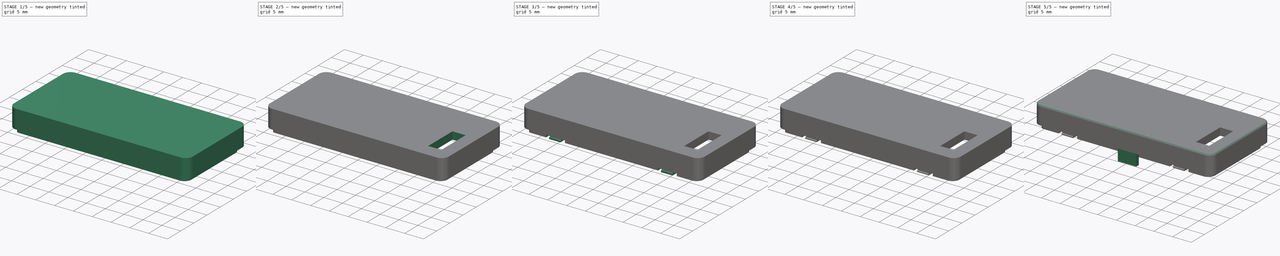
[diagram: build sequence overview — one tinted view per stage of 5, left to right]
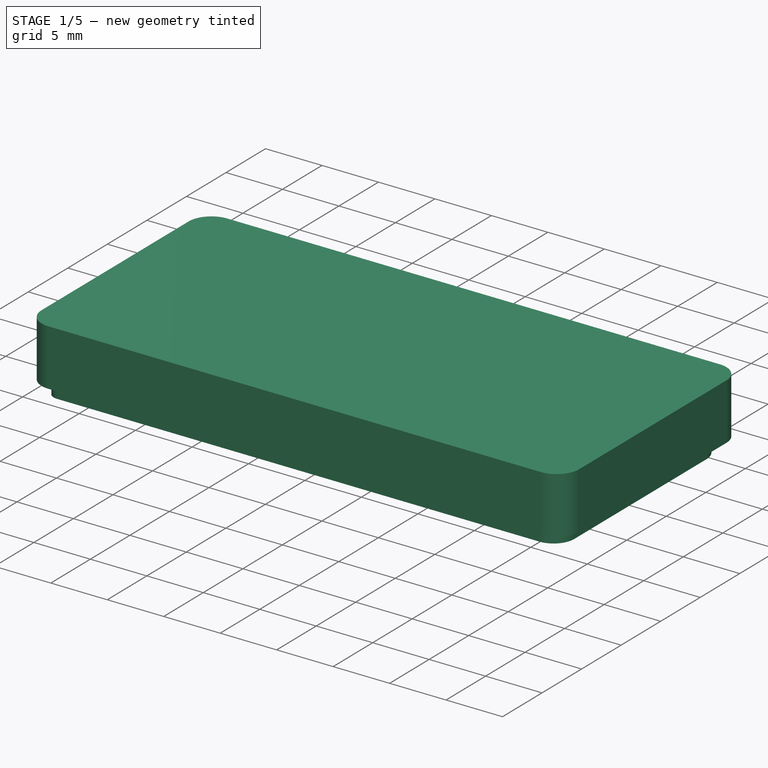
[diagram: stage 1 of 5 — iso view after this stage's code; geometry added in this stage tinted green]
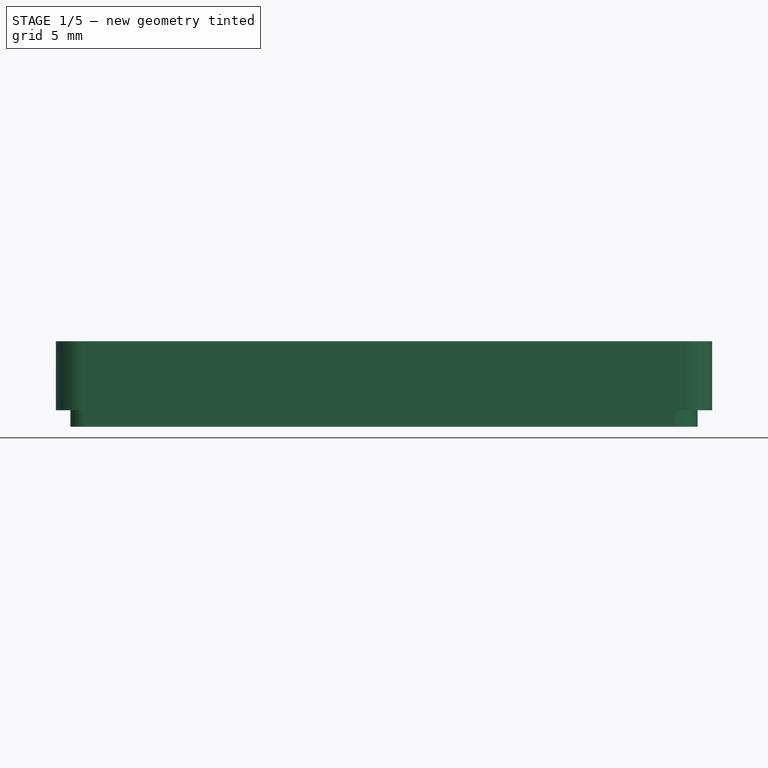
[diagram: stage 1 of 5 — front view after this stage's code; geometry added in this stage tinted green]
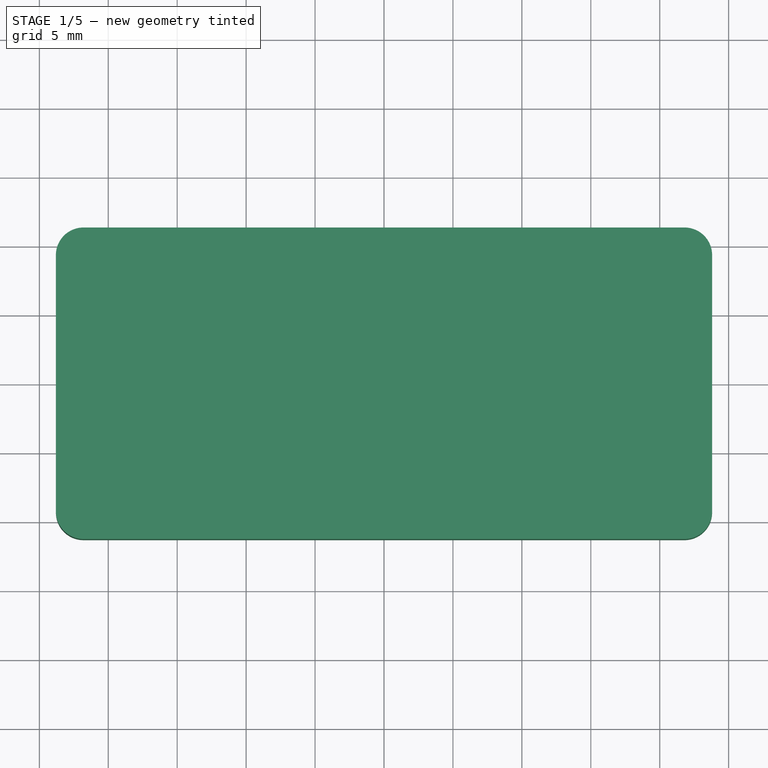
[diagram: stage 1 of 5 — top view after this stage's code; geometry added in this stage tinted green]
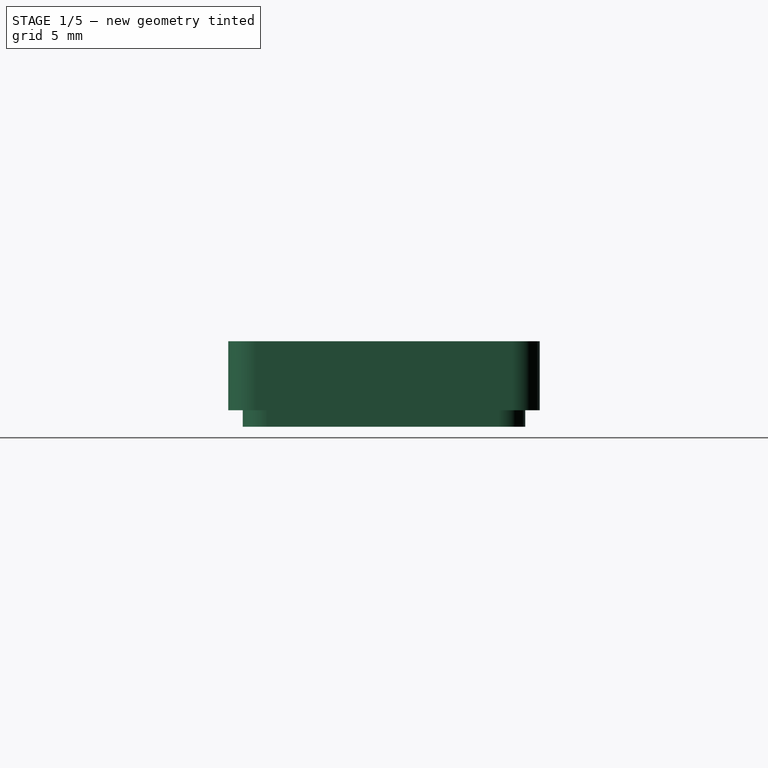
[diagram: stage 1 of 5 — right view after this stage's code; geometry added in this stage tinted green]
FCSTD DOCUMENT  (FreeCAD 1.0R39109 (Git))
Label: Oberteil
License: All rights reserved
LicenseURL: https://en.wikipedia.org/wiki/All_rights_reserved
objects: Sketcher::SketchObject×11, PartDesign::Pad×6, PartDesign::Pocket×5, PartDesign::Fillet×3, PartDesign::Chamfer×1, PartDesign::Body×1
note: 68 computed .brp shape members not serialized (recipe doc carries the construction recipe); baked Part::Feature solids carry a one-line shape summary decoded from their .brp

FEATURE [Sketcher::SketchObject] Sketch
  ArcFitTolerance = 1e-06
  AttachmentSupport = -> [XY_Plane]
  FullyConstrained = true
  MakeInternals = false
  MapMode = 5
  sketch-geometry (13):
    g0: LineSegment StartX=-21.8 StartY=-11.3 StartZ=0 EndX=21.8 EndY=-11.3 EndZ=0
    g1: LineSegment StartX=23.8 StartY=-9.3 StartZ=0 EndX=23.8 EndY=9.3 EndZ=0
    g2: LineSegment StartX=21.8 StartY=11.3 StartZ=0 EndX=-21.8 EndY=11.3 EndZ=0
    g3: LineSegment StartX=-23.8 StartY=9.3 StartZ=0 EndX=-23.8 EndY=-9.3 EndZ=0
    g4: GeomPoint [constr] X=0 Y=0 Z=0
    g5: ArcOfCircle CenterX=-21.8 CenterY=9.3 CenterZ=0 NormalX=0 NormalY=0 NormalZ=1 AngleXU=0 Radius=2 StartAngle=1.5708 EndAngle=3.14159
    g6: GeomPoint [constr] X=-23.8 Y=11.3 Z=0
    g7: ArcOfCircle CenterX=21.8 CenterY=9.3 CenterZ=0 NormalX=0 NormalY=0 NormalZ=1 AngleXU=0 Radius=2 StartAngle=0 EndAngle=1.5708
    g8: GeomPoint [constr] X=23.8 Y=11.3 Z=0
    g9: ArcOfCircle CenterX=-21.8 CenterY=-9.3 CenterZ=0 NormalX=0 NormalY=0 NormalZ=1 AngleXU=0 Radius=2 StartAngle=3.14159 EndAngle=4.71239
    g10: GeomPoint [constr] X=-23.8 Y=-11.3 Z=0
    g11: ArcOfCircle CenterX=21.8 CenterY=-9.3 CenterZ=0 NormalX=0 NormalY=0 NormalZ=1 AngleXU=0 Radius=2 StartAngle=4.71239 EndAngle=6.28319
    g12: GeomPoint [constr] X=23.8 Y=-11.3 Z=0
  constraints (28):
    c: Horizontal(g0)
    c: Horizontal(g2)
    c: Vertical(g1)
    c: Vertical(g3)
    c: Symmetric(g8,g10,g4)
    c: Distance(g12,g10) = 47.6
    c: Distance(g10,g6) = 22.6
    c: Coincident(g4,g-1)
    c: PointOnObject(g6,g2)
    c: PointOnObject(g6,g3)
    c: Tangent(g2,g5) = -1.5708
    c: Tangent(g3,g5) = -1.5708
    c: PointOnObject(g8,g2)
    c: PointOnObject(g8,g1)
    c: Tangent(g2,g7) = -1.5708
    c: Tangent(g1,g7) = -1.5708
    c: PointOnObject(g10,g3)
    c: PointOnObject(g10,g0)
    c: Tangent(g3,g9) = -1.5708
    c: Tangent(g0,g9) = -1.5708
    c: PointOnObject(g12,g1)
    c: PointOnObject(g12,g0)
    c: Tangent(g1,g11) = -1.5708
    c: Tangent(g0,g11) = -1.5708
    c: DistanceX(g3,g5) = 2
    c: DistanceX(g3,g9) = 2
    c: DistanceX(g7,g1) = 2
    c: DistanceX(g11,g1) = 2
FEATURE [PartDesign::Pad] Pad
  Direction = (0,0,1)
  Length = 2
  Length2 = 10
  Profile = -> Sketch
  ReferenceAxis = -> Sketch [N_Axis]
  Refine = true
  Suppressed = false
  Type = 0
FEATURE [Sketcher::SketchObject] Sketch002
  ArcFitTolerance = 1e-06
  AttachmentSupport = -> [Pad]
  ExternalGeometry = -> [Pad]
  FullyConstrained = true
  MakeInternals = false
  MapMode = 5
  Placement = pos=(0,0,0) rot=(1,0,0;3.14159rad)
  sketch-geometry (26):
    g0: LineSegment StartX=-23.8 StartY=9.3 StartZ=0 EndX=-23.8 EndY=-9.3 EndZ=0
    g1: LineSegment StartX=-21.8 StartY=-11.3 StartZ=0 EndX=21.8 EndY=-11.3 EndZ=0
    g2: LineSegment StartX=23.8 StartY=-9.3 StartZ=0 EndX=23.8 EndY=9.3 EndZ=0
    g3: LineSegment StartX=21.8 StartY=11.3 StartZ=0 EndX=-21.8 EndY=11.3 EndZ=0
    g4: GeomPoint [constr] X=0 Y=0 Z=0
    g5: ArcOfCircle CenterX=-21.8 CenterY=9.3 CenterZ=0 NormalX=0 NormalY=0 NormalZ=1 AngleXU=0 Radius=2 StartAngle=1.5708 EndAngle=3.14159
    g6: GeomPoint [constr] X=-23.8 Y=11.3 Z=0
    g7: ArcOfCircle CenterX=-21.8 CenterY=-9.3 CenterZ=0 NormalX=0 NormalY=0 NormalZ=1 AngleXU=0 Radius=2 StartAngle=3.14159 EndAngle=4.71239
    g8: GeomPoint [constr] X=-23.8 Y=-11.3 Z=0
    g9: ArcOfCircle CenterX=21.8 CenterY=9.3 CenterZ=0 NormalX=0 NormalY=0 NormalZ=1 AngleXU=0 Radius=2 StartAngle=0 EndAngle=1.5708
    g10: GeomPoint [constr] X=23.8 Y=11.3 Z=0
    g11: ArcOfCircle CenterX=21.8 CenterY=-9.3 CenterZ=0 NormalX=0 NormalY=0 NormalZ=1 AngleXU=0 Radius=2 StartAngle=4.71239 EndAngle=6.28319
    g12: GeomPoint [constr] X=23.8 Y=-11.3 Z=0
    g13: LineSegment StartX=-21.8 StartY=8.3 StartZ=0 EndX=-21.8 EndY=-8.3 EndZ=0
    g14: LineSegment StartX=-20.8 StartY=-9.3 StartZ=0 EndX=20.8 EndY=-9.3 EndZ=0
    g15: LineSegment StartX=21.8 StartY=-8.3 StartZ=0 EndX=21.8 EndY=8.3 EndZ=0
    g16: LineSegment StartX=20.8 StartY=9.3 StartZ=0 EndX=-20.8 EndY=9.3 EndZ=0
    g17: GeomPoint [constr] X=0 Y=0 Z=0
    g18: ArcOfCircle CenterX=-20.8 CenterY=8.3 CenterZ=0 NormalX=0 NormalY=0 NormalZ=1 AngleXU=0 Radius=1 StartAngle=1.5708 EndAngle=3.14159
    g19: GeomPoint [constr] X=-21.8 Y=9.3 Z=0
    g20: ArcOfCircle CenterX=-20.8 CenterY=-8.3 CenterZ=0 NormalX=0 NormalY=0 NormalZ=1 AngleXU=0 Radius=1 StartAngle=3.14159 EndAngle=4.71239
    g21: GeomPoint [constr] X=-21.8 Y=-9.3 Z=0
    g22: ArcOfCircle CenterX=20.8 CenterY=-8.3 CenterZ=0 NormalX=0 NormalY=0 NormalZ=1 AngleXU=0 Radius=1 StartAngle=4.71239 EndAngle=6.28319
    g23: GeomPoint [constr] X=21.8 Y=-9.3 Z=0
    g24: ArcOfCircle CenterX=20.8 CenterY=8.3 CenterZ=0 NormalX=0 NormalY=0 NormalZ=1 AngleXU=0 Radius=1 StartAngle=1e-16 EndAngle=1.5708
    g25: GeomPoint [constr] X=21.8 Y=9.3 Z=0
  constraints (56):
    c: Vertical(g0)
    c: Vertical(g2)
    c: Horizontal(g1)
    c: Horizontal(g3)
    c: Symmetric(g12,g6,g4)
    c: Coincident(g4,g-1)
    c: PointOnObject(g6,g3)
    c: PointOnObject(g6,g0)
    c: Tangent(g3,g5) = -1.5708
    c: Tangent(g0,g5) = -1.5708
    c: PointOnObject(g8,g0)
    c: PointOnObject(g8,g1)
    c: Tangent(g0,g7) = -1.5708
    c: Tangent(g1,g7) = -1.5708
    c: PointOnObject(g10,g3)
    c: PointOnObject(g10,g2)
    c: Tangent(g3,g9) = -1.5708
    c: Tangent(g2,g9) = -1.5708
    c: PointOnObject(g12,g2)
    c: PointOnObject(g12,g1)
    c: Tangent(g2,g11) = -1.5708
    c: Tangent(g1,g11) = -1.5708
    c: Equal(g5,g-4)
    c: Equal(g7,g-6)
    c: Equal(g9,g-10)
    c: Equal(g11,g-8)
    c: Equal(g2,g-9)
    c: Equal(g3,g-3)
    c: Vertical(g13)
    c: Vertical(g15)
    c: Horizontal(g14)
    c: Horizontal(g16)
    c: Symmetric(g23,g19,g17)
    c: Coincident(g17,g4)
    c: PointOnObject(g19,g16)
    c: PointOnObject(g19,g13)
    c: Tangent(g16,g18) = -1.5708
    c: Tangent(g13,g18) = -1.5708
    c: PointOnObject(g21,g13)
    c: PointOnObject(g21,g14)
    c: Tangent(g13,g20) = -1.5708
    c: Tangent(g14,g20) = -1.5708
    c: PointOnObject(g23,g15)
    c: PointOnObject(g23,g14)
    c: Tangent(g15,g22) = -1.5708
    c: Tangent(g14,g22) = -1.5708
    c: PointOnObject(g25,g16)
    c: PointOnObject(g25,g15)
    c: Tangent(g16,g24) = -1.5708
    c: Tangent(g15,g24) = -1.5708
    c: Distance(g3,g16) = 2
    c: Distance(g13,g0) = 2
    c: DistanceX(g13,g18) = 1
    c: DistanceX(g13,g20) = 1
    c: DistanceY(g24,g16) = 1
    c: DistanceY(g14,g22) = 1
FEATURE [PartDesign::Pad] Pad001
  BaseFeature = -> Pad
  Direction = (0,0,-1)
  Length = 3
  Length2 = 10
  Profile = -> Sketch002
  ReferenceAxis = -> Sketch002 [N_Axis]
  Refine = true
  Suppressed = false
  Type = 0
FEATURE [Sketcher::SketchObject] Sketch003
  ArcFitTolerance = 1e-06
  AttachmentSupport = -> [Pad001]
  ExternalGeometry = -> [Pad001]
  FullyConstrained = false
  MakeInternals = false
  MapMode = 5
  Placement = pos=(0,0,-3) rot=(1,0,0;3.14159rad)
  sketch-geometry (40):
    g0: LineSegment StartX=-21.8 StartY=8.3 StartZ=0 EndX=-21.8 EndY=-8.3 EndZ=0
    g1: LineSegment StartX=-20.8 StartY=-9.3 StartZ=0 EndX=20.8 EndY=-9.3 EndZ=0
    g2: LineSegment StartX=21.8 StartY=-8.3 StartZ=0 EndX=21.8 EndY=8.3 EndZ=0
    g3: LineSegment StartX=20.8 StartY=9.3 StartZ=0 EndX=-20.8 EndY=9.3 EndZ=0
    g4: GeomPoint [constr] X=0 Y=0 Z=0
    g5: ArcOfCircle CenterX=20.8 CenterY=8.3 CenterZ=0 NormalX=0 NormalY=0 NormalZ=1 AngleXU=0 Radius=1 StartAngle=7e-16 EndAngle=1.5708
    g6: GeomPoint [constr] X=21.8 Y=9.3 Z=0
    g7: ArcOfCircle CenterX=-20.8 CenterY=8.3 CenterZ=0 NormalX=0 NormalY=0 NormalZ=1 AngleXU=0 Radius=1 StartAngle=1.5708 EndAngle=3.14159
    g8: GeomPoint [constr] X=-21.8 Y=9.3 Z=0
    g9: ArcOfCircle CenterX=-20.8 CenterY=-8.3 CenterZ=0 NormalX=0 NormalY=0 NormalZ=1 AngleXU=0 Radius=1 StartAngle=3.14159 EndAngle=4.71239
    g10: GeomPoint [constr] X=-21.8 Y=-9.3 Z=0
    g11: ArcOfCircle CenterX=20.8 CenterY=-8.3 CenterZ=0 NormalX=0 NormalY=0 NormalZ=1 AngleXU=0 Radius=1 StartAngle=4.71239 EndAngle=6.28319
    g12: GeomPoint [constr] X=21.8 Y=-9.3 Z=0
    g13: LineSegment StartX=-22.75 StartY=9.27382 StartZ=0 EndX=-22.75 EndY=-8.81139 EndZ=0
    g14: LineSegment StartX=-21.3114 StartY=-10.25 StartZ=0 EndX=20.7976 EndY=-10.25 EndZ=0
    g15: LineSegment StartX=22.75 StartY=-8.29762 StartZ=0 EndX=22.75 EndY=8.43735 EndZ=0
    g16: LineSegment StartX=20.9373 StartY=10.25 StartZ=0 EndX=-21.7738 EndY=10.25 EndZ=0
    g17: GeomPoint [constr] X=0 Y=0 Z=0
    g18: ArcOfCircle CenterX=-21.7738 CenterY=9.27382 CenterZ=0 NormalX=0 NormalY=0 NormalZ=1 AngleXU=0 Radius=0.976183 StartAngle=1.5708 EndAngle=3.14159
    g19: GeomPoint [constr] X=-22.75 Y=10.25 Z=0
    g20: ArcOfCircle CenterX=-21.3114 CenterY=-8.81139 CenterZ=0 NormalX=0 NormalY=0 NormalZ=1 AngleXU=0 Radius=1.43861 StartAngle=3.14159 EndAngle=4.71239
    g21: GeomPoint [constr] X=-22.75 Y=-10.25 Z=0
    g22: ArcOfCircle CenterX=20.7976 CenterY=-8.29762 CenterZ=0 NormalX=0 NormalY=0 NormalZ=1 AngleXU=0 Radius=1.95238 StartAngle=4.71239 EndAngle=6.28319
    g23: GeomPoint [constr] X=22.75 Y=-10.25 Z=0
    g24: ArcOfCircle CenterX=20.9373 CenterY=8.43735 CenterZ=0 NormalX=0 NormalY=0 NormalZ=1 AngleXU=0 Radius=1.81265 StartAngle=0 EndAngle=1.5708
    g25: GeomPoint [constr] X=22.75 Y=10.25 Z=0
    g26: LineSegment [constr] StartX=-21.8 StartY=9.3 StartZ=0 EndX=-23.8 EndY=9.3 EndZ=0
    g27: LineSegment [constr] StartX=-21.8 StartY=9.3 StartZ=0 EndX=-21.8 EndY=11.3 EndZ=0
    g28: LineSegment [constr] StartX=-21.3114 StartY=-8.81139 StartZ=0 EndX=-22.9773 EndY=-8.81139 EndZ=0
    g29: LineSegment [constr] StartX=-22.9773 StartY=-8.81139 StartZ=0 EndX=-22.9773 EndY=-10.4975 EndZ=0
    g30: LineSegment [constr] StartX=-22.9773 StartY=-10.4975 StartZ=0 EndX=-21.3114 EndY=-10.4975 EndZ=0
    g31: LineSegment [constr] StartX=-21.3114 StartY=-10.4975 StartZ=0 EndX=-21.3114 EndY=-8.81139 EndZ=0
    g32: LineSegment [constr] StartX=20.8 StartY=-8.3 StartZ=0 EndX=20.8 EndY=-10.4784 EndZ=0
    g33: LineSegment [constr] StartX=20.8 StartY=-10.4784 StartZ=0 EndX=22.8889 EndY=-10.4784 EndZ=0
    g34: LineSegment [constr] StartX=22.8889 StartY=-10.4784 StartZ=0 EndX=22.8889 EndY=-8.3 EndZ=0
    g35: LineSegment [constr] StartX=22.8889 StartY=-8.3 StartZ=0 EndX=20.8 EndY=-8.3 EndZ=0
    g36: LineSegment [constr] StartX=20.9373 StartY=8.43735 StartZ=0 EndX=22.9965 EndY=8.43735 EndZ=0
    g37: LineSegment [constr] StartX=22.9965 StartY=8.43735 StartZ=0 EndX=22.9965 EndY=10.3745 EndZ=0
    g38: LineSegment [constr] StartX=22.9965 StartY=10.3745 StartZ=0 EndX=20.9373 EndY=10.3745 EndZ=0
    g39: LineSegment [constr] StartX=20.9373 StartY=10.3745 StartZ=0 EndX=20.9373 EndY=8.43735 EndZ=0
  constraints (83):
    c: Vertical(g0)
    c: Vertical(g2)
    c: Horizontal(g1)
    c: Horizontal(g3)
    c: Symmetric(g12,g8,g4)
    c: Coincident(g4,g-1)
    c: PointOnObject(g6,g3)
    c: PointOnObject(g6,g2)
    c: Tangent(g3,g5) = -1.5708
    c: Tangent(g2,g5) = -1.5708
    c: PointOnObject(g8,g3)
    c: PointOnObject(g8,g0)
    c: Tangent(g3,g7) = -1.5708
    c: Tangent(g0,g7) = -1.5708
    c: PointOnObject(g10,g0)
    c: PointOnObject(g10,g1)
    c: Tangent(g0,g9) = -1.5708
    c: Tangent(g1,g9) = -1.5708
    c: PointOnObject(g12,g2)
    c: PointOnObject(g12,g1)
    c: Tangent(g2,g11) = -1.5708
    c: Tangent(g1,g11) = -1.5708
    c: DistanceX(g0,g7) = 1
    c: DistanceX(g0,g9) = 1
    c: DistanceY(g5,g3) = 1
    c: DistanceX(g11,g2) = 1
    c: Equal(g3,g-3)
    c: Equal(g0,g-4)
    c: Vertical(g13)
    c: Vertical(g15)
    c: Horizontal(g14)
    c: Horizontal(g16)
    c: Symmetric(g23,g19,g17)
    c: Coincident(g17,g4)
    c: Distance(g3,g16) = 0.95
    c: Distance(g0,g13) = 0.95
    c: PointOnObject(g19,g16)
    c: PointOnObject(g19,g13)
    c: Tangent(g16,g18) = -1.5708
    c: Tangent(g13,g18) = -1.5708
    c: PointOnObject(g21,g13)
    c: PointOnObject(g21,g14)
    c: Tangent(g13,g20) = -1.5708
    c: Tangent(g14,g20) = -1.5708
    c: PointOnObject(g23,g15)
    c: PointOnObject(g23,g14)
    c: Tangent(g15,g22) = -1.5708
    c: Tangent(g14,g22) = -1.5708
    c: PointOnObject(g25,g16)
    c: PointOnObject(g25,g15)
    c: Tangent(g16,g24) = -1.5708
    c: Tangent(g15,g24) = -1.5708
    c: Coincident(g26,g8)
    c: Coincident(g26,g-7)
    c: Coincident(g27,g8)
    c: Coincident(g27,g-8)
    c: Coincident(g28,g29)
    c: Coincident(g29,g30)
    c: Coincident(g30,g31)
    c: Coincident(g31,g28)
    c: Horizontal(g28)
    c: Horizontal(g30)
    c: Vertical(g29)
    c: Vertical(g31)
    c: Coincident(g28,g20)
    c: Coincident(g32,g33)
    c: Coincident(g33,g34)
    c: Coincident(g34,g35)
    c: Coincident(g35,g32)
    c: Vertical(g32)
    c: Vertical(g34)
    c: Horizontal(g33)
    c: Horizontal(g35)
    c: Coincident(g32,g11)
    c: Coincident(g36,g37)
    c: Coincident(g37,g38)
    c: Coincident(g38,g39)
    c: Coincident(g39,g36)
    c: Horizontal(g36)
    c: Horizontal(g38)
    c: Vertical(g37)
    c: Vertical(g39)
    c: Coincident(g36,g24)
FEATURE [PartDesign::Pad] Pad002
  BaseFeature = -> Pad001
  Direction = (0,0,-1)
  Length = 1.2
  Length2 = 10
  Profile = -> Sketch003
  ReferenceAxis = -> Sketch003 [N_Axis]
  Refine = true
  Suppressed = false
  Type = 0
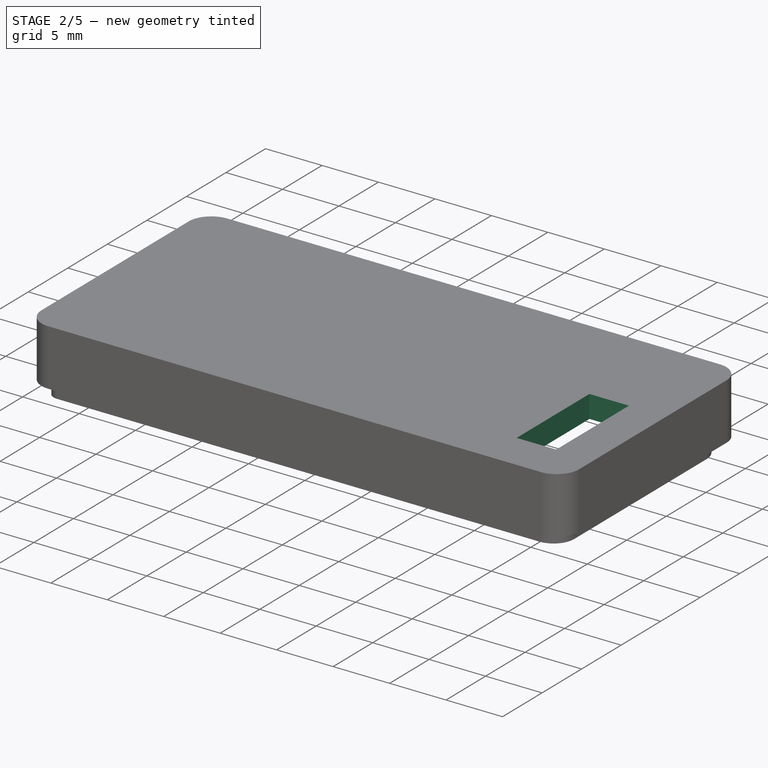
[diagram: stage 2 of 5 — iso view after this stage's code; geometry added in this stage tinted green]
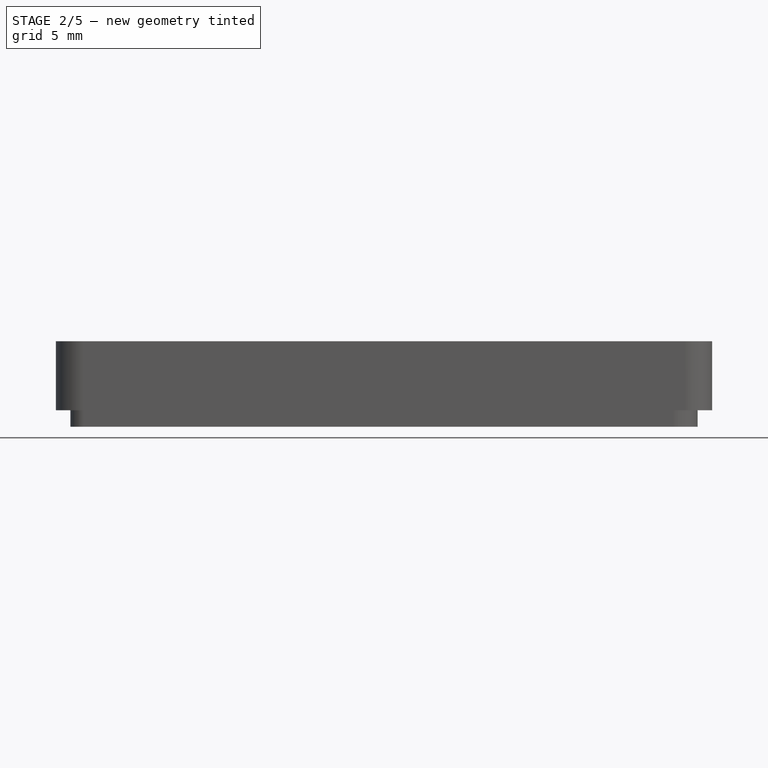
[diagram: stage 2 of 5 — front view after this stage's code; geometry added in this stage tinted green]
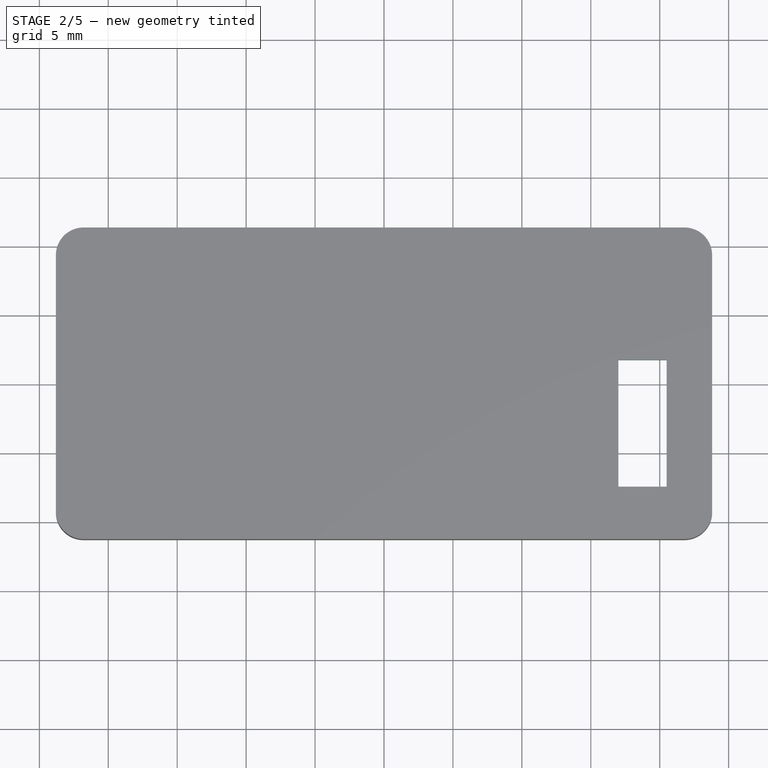
[diagram: stage 2 of 5 — top view after this stage's code; geometry added in this stage tinted green]
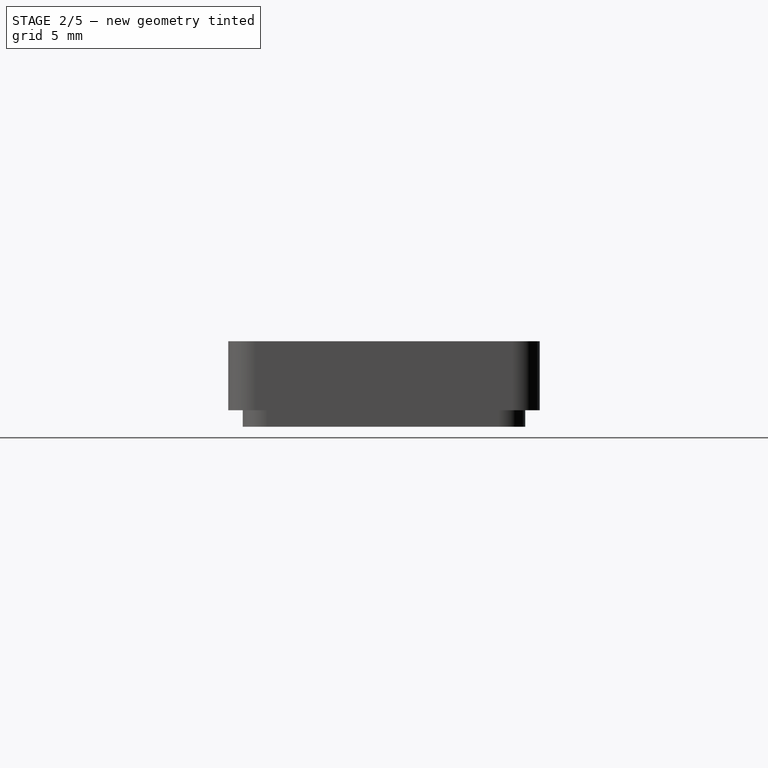
[diagram: stage 2 of 5 — right view after this stage's code; geometry added in this stage tinted green]
FEATURE [Sketcher::SketchObject] Sketch004
  ArcFitTolerance = 1e-06
  AttachmentSupport = -> [Pad002]
  ExternalGeometry = -> [Pad002]
  FullyConstrained = false
  MakeInternals = false
  MapMode = 5
  Placement = pos=(-23.8,0,6.71e-14) rot=(0.57735,-0.57735,-0.57735;2.0944rad)
  sketch-geometry (4):
    g0: LineSegment StartX=-2.60295 StartY=-1.35707 StartZ=0 EndX=-2.60295 EndY=-4.35707 EndZ=0
    g1: LineSegment StartX=-2.60295 StartY=-4.35707 StartZ=0 EndX=6.19705 EndY=-4.35707 EndZ=0
    g2: LineSegment StartX=6.19705 StartY=-4.35707 StartZ=0 EndX=6.19705 EndY=-1.35707 EndZ=0
    g3: LineSegment StartX=6.19705 StartY=-1.35707 StartZ=0 EndX=-2.60295 EndY=-1.35707 EndZ=0
  constraints (10):
    c: Coincident(g0,g1)
    c: Coincident(g1,g2)
    c: Coincident(g2,g3)
    c: Coincident(g3,g0)
    c: Vertical(g0)
    c: Vertical(g2)
    c: Horizontal(g1)
    c: Horizontal(g3)
    c: Distance(g0,g2) = 8.8
    c: Distance(g1,g3) = 3
FEATURE [PartDesign::Pocket] Pocket
  BaseFeature = -> Pad002
  Direction = (1,-1e-16,-2.8e-15)
  Length = 2
  Length2 = 5
  Profile = -> Sketch004
  ReferenceAxis = -> Sketch004 [N_Axis]
  Refine = true
  Suppressed = false
  Type = 0
FEATURE [Sketcher::SketchObject] Sketch005
  ArcFitTolerance = 1e-06
  AttachmentSupport = -> [Pocket]
  ExternalGeometry = -> [Pocket]
  FullyConstrained = true
  MakeInternals = false
  MapMode = 5
  Placement = pos=(0,0,2) rot=(0,0,1;0rad)
  sketch-geometry (4):
    g0: LineSegment StartX=17 StartY=1.7 StartZ=0 EndX=17 EndY=-7.5 EndZ=0
    g1: LineSegment StartX=17 StartY=-7.5 StartZ=0 EndX=20.5 EndY=-7.5 EndZ=0
    g2: LineSegment StartX=20.5 StartY=-7.5 StartZ=0 EndX=20.5 EndY=1.7 EndZ=0
    g3: LineSegment StartX=20.5 StartY=1.7 StartZ=0 EndX=17 EndY=1.7 EndZ=0
  constraints (12):
    c: Coincident(g0,g1)
    c: Coincident(g1,g2)
    c: Coincident(g2,g3)
    c: Coincident(g3,g0)
    c: Vertical(g0)
    c: Vertical(g2)
    c: Horizontal(g1)
    c: Horizontal(g3)
    c: Distance(g3,g-3) = 13
    c: Distance(g-4,g2) = 3.3
    c: DistanceX(g1,g1) = 3.5
    c: DistanceY(g0,g0) = 9.2
FEATURE [PartDesign::Pocket] Pocket001
  BaseFeature = -> Pocket
  Direction = (0,0,-1)
  Length = 2
  Length2 = 5
  Profile = -> Sketch005
  ReferenceAxis = -> Sketch005 [N_Axis]
  Refine = true
  Suppressed = false
  Type = 0
FEATURE [Sketcher::SketchObject] Sketch006
  ArcFitTolerance = 1e-06
  AttachmentSupport = -> [Pocket001]
  ExternalGeometry = -> [Pocket001]
  FullyConstrained = true
  MakeInternals = false
  MapMode = 5
  Placement = pos=(0,11.3,1.199e-13) rot=(0,0.707107,0.707107;3.14159rad)
  sketch-geometry (4):
    g0: LineSegment StartX=-21 StartY=0 StartZ=0 EndX=-21 EndY=-5 EndZ=0
    g1: LineSegment StartX=-21 StartY=-5 StartZ=0 EndX=-11 EndY=-5 EndZ=0
    g2: LineSegment StartX=-11 StartY=-5 StartZ=0 EndX=-11 EndY=0 EndZ=0
    g3: LineSegment StartX=-11 StartY=0 StartZ=0 EndX=-21 EndY=0 EndZ=0
  constraints (12):
    c: Coincident(g0,g1)
    c: Coincident(g1,g2)
    c: Coincident(g2,g3)
    c: Coincident(g3,g0)
    c: Vertical(g0)
    c: Vertical(g2)
    c: Horizontal(g1)
    c: Horizontal(g3)
    c: Distance(g0,g2) = 10
    c: Distance(g1,g3) = 5
    c: PointOnObject(g0,g-1)
    c: Distance(g0,g-4) = 2.8
FEATURE [PartDesign::Pocket] Pocket002
  BaseFeature = -> Pocket001
  Direction = (0,-1,-1.09e-14)
  Length = 2
  Length2 = 5
  Profile = -> Sketch006
  ReferenceAxis = -> Sketch006 [N_Axis]
  Refine = true
  Suppressed = false
  Type = 0
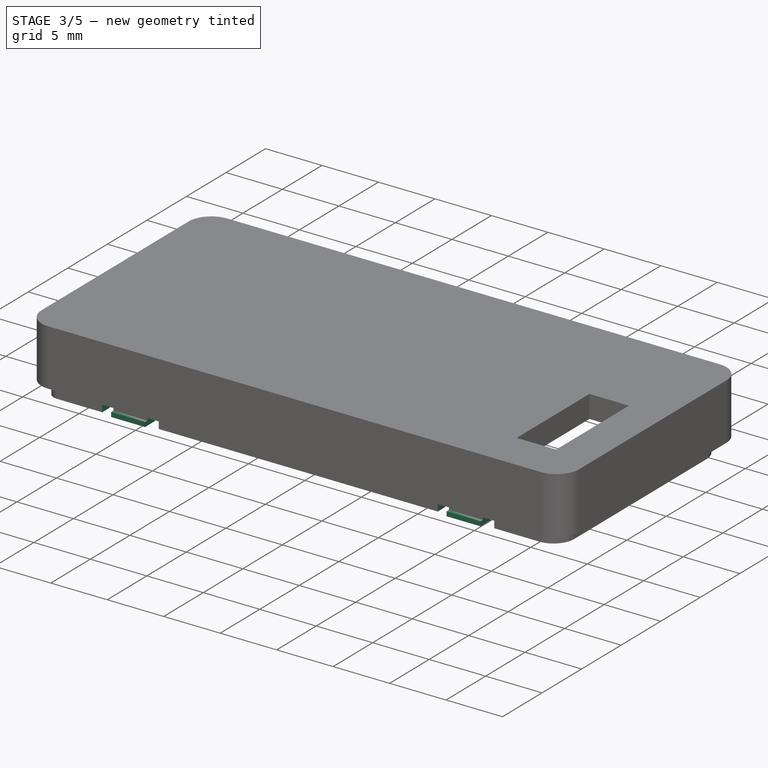
[diagram: stage 3 of 5 — iso view after this stage's code; geometry added in this stage tinted green]
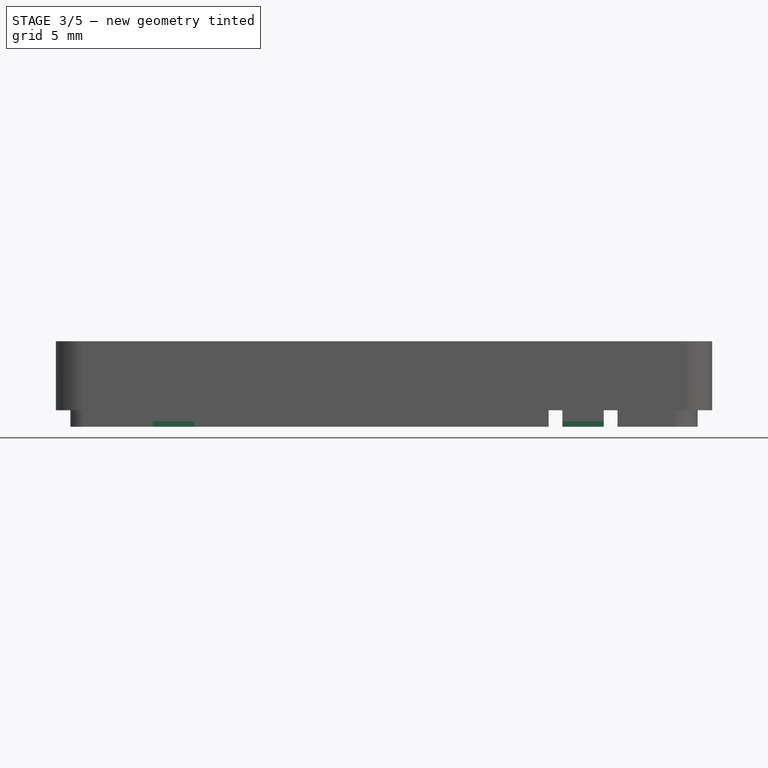
[diagram: stage 3 of 5 — front view after this stage's code; geometry added in this stage tinted green]
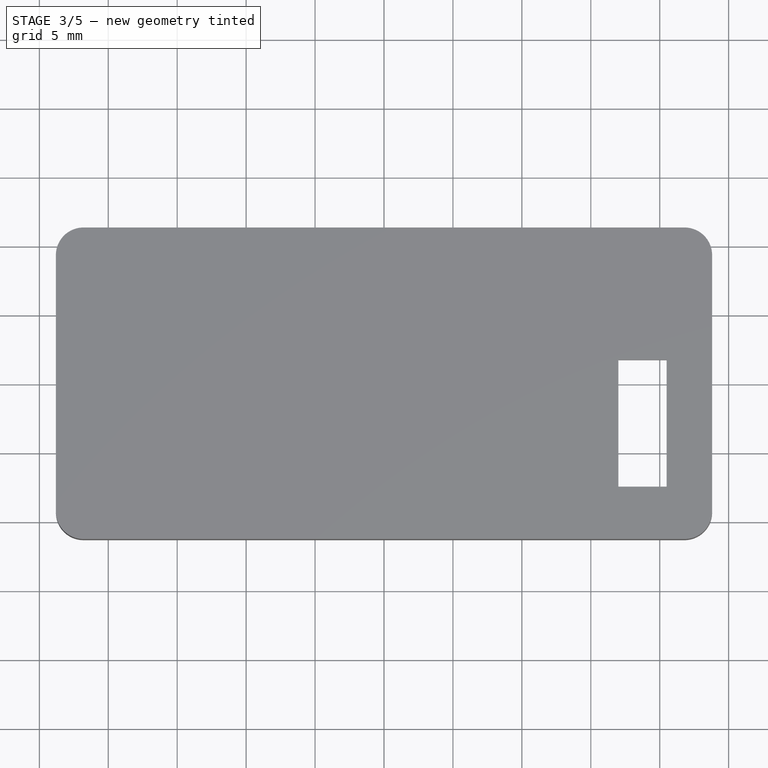
[diagram: stage 3 of 5 — top view after this stage's code; geometry added in this stage tinted green]
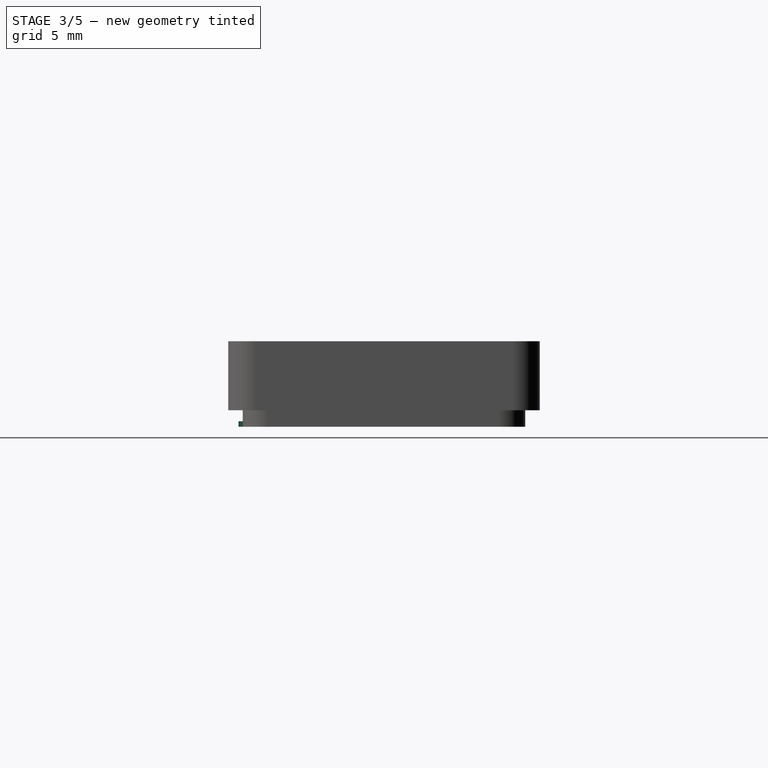
[diagram: stage 3 of 5 — right view after this stage's code; geometry added in this stage tinted green]
FEATURE [PartDesign::Chamfer] Chamfer
  Angle = 45
  Base = -> Pocket002 [Edge21,Edge20,Edge19]
  BaseFeature = -> Pocket002
  ChamferType = 0
  FlipDirection = false
  Refine = true
  Size = 0.5
  Size2 = 1
  SupportTransform = false
  Suppressed = false
  UseAllEdges = false
FEATURE [Sketcher::SketchObject] Sketch007
  ArcFitTolerance = 1e-06
  AttachmentSupport = -> [Chamfer]
  ExternalGeometry = -> [Chamfer]
  FullyConstrained = true
  MakeInternals = false
  MapMode = 5
  Placement = pos=(0,-10.25,0) rot=(1,0,0;1.5708rad)
  sketch-geometry (8):
    g0: LineSegment StartX=-16.7738 StartY=-3.8 StartZ=0 EndX=-16.7738 EndY=-4.2 EndZ=0
    g1: LineSegment StartX=-16.7738 StartY=-4.2 StartZ=0 EndX=-13.7738 EndY=-4.2 EndZ=0
    g2: LineSegment StartX=-13.7738 StartY=-4.2 StartZ=0 EndX=-13.7738 EndY=-3.8 EndZ=0
    g3: LineSegment StartX=-13.7738 StartY=-3.8 StartZ=0 EndX=-16.7738 EndY=-3.8 EndZ=0
    g4: LineSegment StartX=12.9373 StartY=-3.8 StartZ=0 EndX=12.9373 EndY=-4.2 EndZ=0
    g5: LineSegment StartX=12.9373 StartY=-4.2 StartZ=0 EndX=15.9373 EndY=-4.2 EndZ=0
    g6: LineSegment StartX=15.9373 StartY=-4.2 StartZ=0 EndX=15.9373 EndY=-3.8 EndZ=0
    g7: LineSegment StartX=15.9373 StartY=-3.8 StartZ=0 EndX=12.9373 EndY=-3.8 EndZ=0
  constraints (24):
    c: Coincident(g0,g1)
    c: Coincident(g1,g2)
    c: Coincident(g2,g3)
    c: Coincident(g3,g0)
    c: Vertical(g0)
    c: Vertical(g2)
    c: Horizontal(g1)
    c: Horizontal(g3)
    c: Distance(g0,g2) = 3
    c: Distance(g1,g3) = 0.4
    c: PointOnObject(g1,g-4)
    c: Distance(g0,g-3) = 5
    c: Coincident(g4,g5)
    c: Coincident(g5,g6)
    c: Coincident(g6,g7)
    c: Coincident(g7,g4)
    c: Vertical(g4)
    c: Vertical(g6)
    c: Horizontal(g5)
    c: Horizontal(g7)
    c: Distance(g4,g6) = 3
    c: Distance(g5,g7) = 0.4
    c: PointOnObject(g5,g-4)
    c: Distance(g6,g-5) = 5
FEATURE [PartDesign::Pad] Pad003
  BaseFeature = -> Chamfer
  Direction = (0,-1,2e-16)
  Length = 0.3
  Length2 = 10
  Profile = -> Sketch007
  ReferenceAxis = -> Sketch007 [N_Axis]
  Refine = true
  Suppressed = false
  Type = 0
FEATURE [Sketcher::SketchObject] Sketch008
  ArcFitTolerance = 1e-06
  AttachmentSupport = -> [Pad003]
  ExternalGeometry = -> [Pad003]
  FullyConstrained = true
  MakeInternals = false
  MapMode = 5
  Placement = pos=(0,-10.25,0) rot=(1,0,0;1.5708rad)
  sketch-geometry (16):
    g0: LineSegment StartX=-17.7738 StartY=-3 StartZ=0 EndX=-17.7738 EndY=-4.2 EndZ=0
    g1: LineSegment StartX=-17.7738 StartY=-4.2 StartZ=0 EndX=-16.7738 EndY=-4.2 EndZ=0
    g2: LineSegment StartX=-16.7738 StartY=-4.2 StartZ=0 EndX=-16.7738 EndY=-3 EndZ=0
    g3: LineSegment StartX=-16.7738 StartY=-3 StartZ=0 EndX=-17.7738 EndY=-3 EndZ=0
    g4: LineSegment StartX=-13.7738 StartY=-3 StartZ=0 EndX=-13.7738 EndY=-4.2 EndZ=0
    g5: LineSegment StartX=-13.7738 StartY=-4.2 StartZ=0 EndX=-12.7738 EndY=-4.2 EndZ=0
    g6: LineSegment StartX=-12.7738 StartY=-4.2 StartZ=0 EndX=-12.7738 EndY=-3 EndZ=0
    g7: LineSegment StartX=-12.7738 StartY=-3 StartZ=0 EndX=-13.7738 EndY=-3 EndZ=0
    g8: LineSegment StartX=15.9373 StartY=-3 StartZ=0 EndX=15.9373 EndY=-4.2 EndZ=0
    g9: LineSegment StartX=15.9373 StartY=-4.2 StartZ=0 EndX=16.9373 EndY=-4.2 EndZ=0
    g10: LineSegment StartX=16.9373 StartY=-4.2 StartZ=0 EndX=16.9373 EndY=-3 EndZ=0
    g11: LineSegment StartX=16.9373 StartY=-3 StartZ=0 EndX=15.9373 EndY=-3 EndZ=0
    g12: LineSegment StartX=11.9373 StartY=-3 StartZ=0 EndX=11.9373 EndY=-4.2 EndZ=0
    g13: LineSegment StartX=11.9373 StartY=-4.2 StartZ=0 EndX=12.9373 EndY=-4.2 EndZ=0
    g14: LineSegment StartX=12.9373 StartY=-4.2 StartZ=0 EndX=12.9373 EndY=-3 EndZ=0
    g15: LineSegment StartX=12.9373 StartY=-3 StartZ=0 EndX=11.9373 EndY=-3 EndZ=0
  constraints (48):
    c: Coincident(g0,g1)
    c: Coincident(g1,g2)
    c: Coincident(g2,g3)
    c: Coincident(g3,g0)
    c: Vertical(g0)
    c: Vertical(g2)
    c: Horizontal(g1)
    c: Horizontal(g3)
    c: Distance(g0,g2) = 1
    c: Distance(g1,g3) = 1.2
    c: Distance(g-4,g1) = 1.2
    c: Distance(g0,g-3) = 4
    c: Coincident(g4,g5)
    c: Coincident(g5,g6)
    c: Coincident(g6,g7)
    c: Coincident(g7,g4)
    c: Vertical(g4)
    c: Vertical(g6)
    c: Horizontal(g5)
    c: Horizontal(g7)
    c: Distance(g4,g6) = 1
    c: Distance(g5,g7) = 1.2
    c: Distance(g-4,g5) = 1.2
    c: Distance(g4,g-3) = 8
    c: Coincident(g8,g9)
    c: Coincident(g9,g10)
    c: Coincident(g10,g11)
    c: Coincident(g11,g8)
    c: Vertical(g8)
    c: Vertical(g10)
    c: Horizontal(g9)
    c: Horizontal(g11)
    c: Distance(g8,g10) = 1
    c: Distance(g9,g11) = 1.2
    c: Distance(g-5,g11) = 1.2
    c: Distance(g9,g-6) = 4
    c: Coincident(g12,g13)
    c: Coincident(g13,g14)
    c: Coincident(g14,g15)
    c: Coincident(g15,g12)
    c: Vertical(g12)
    c: Vertical(g14)
    c: Horizontal(g13)
    c: Horizontal(g15)
    c: Distance(g12,g14) = 1
    c: Distance(g13,g15) = 1.2
    c: Distance(g-6,g14) = 8
    c: Distance(g-7,g15) = 1.2
FEATURE [PartDesign::Pocket] Pocket003
  BaseFeature = -> Pad003
  Direction = (0,1,-2e-16)
  Length = 1
  Length2 = 5
  Profile = -> Sketch008
  ReferenceAxis = -> Sketch008 [N_Axis]
  Refine = true
  Suppressed = false
  Type = 0
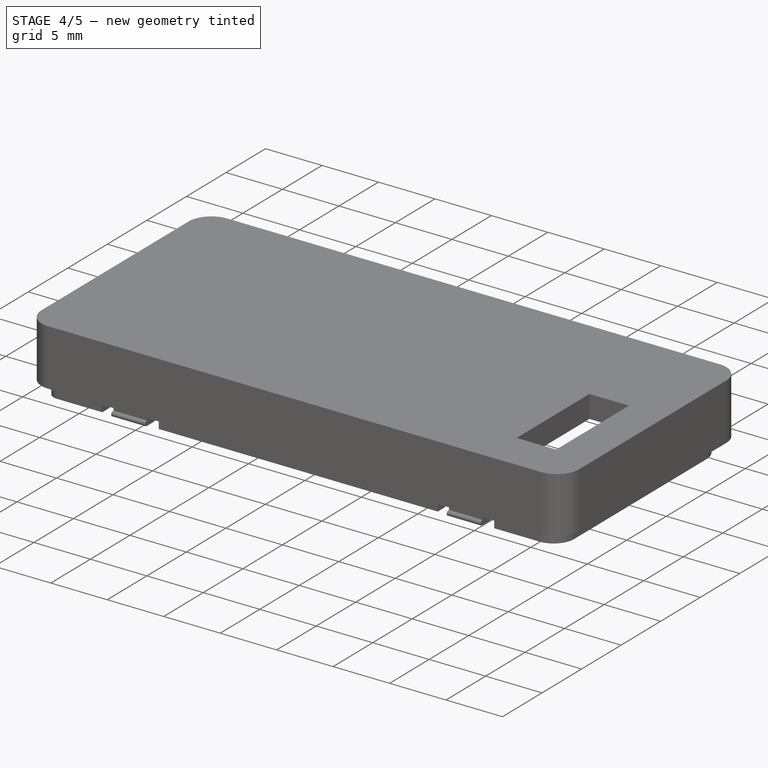
[diagram: stage 4 of 5 — iso view after this stage's code; geometry added in this stage tinted green]
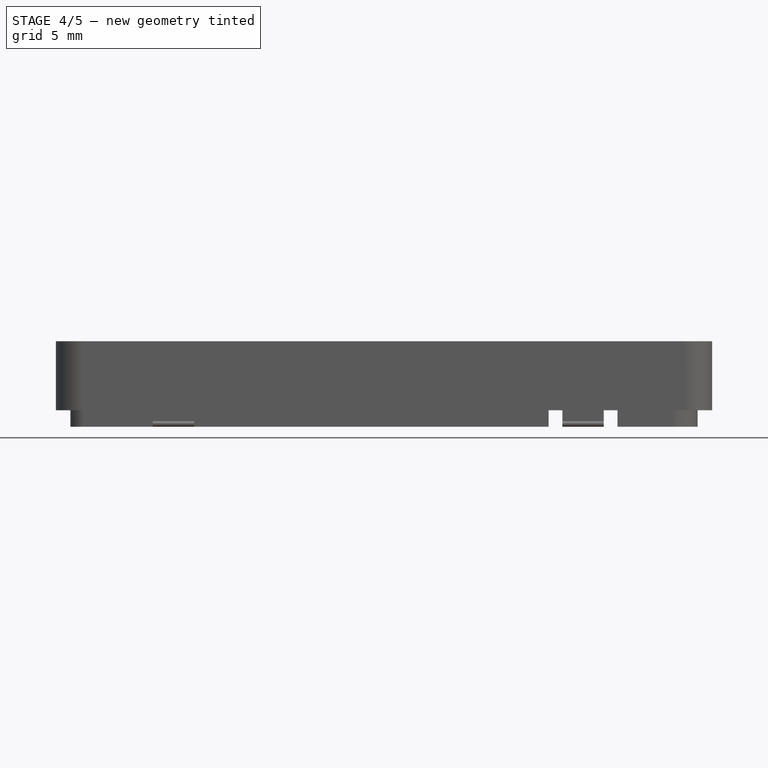
[diagram: stage 4 of 5 — front view after this stage's code; geometry added in this stage tinted green]
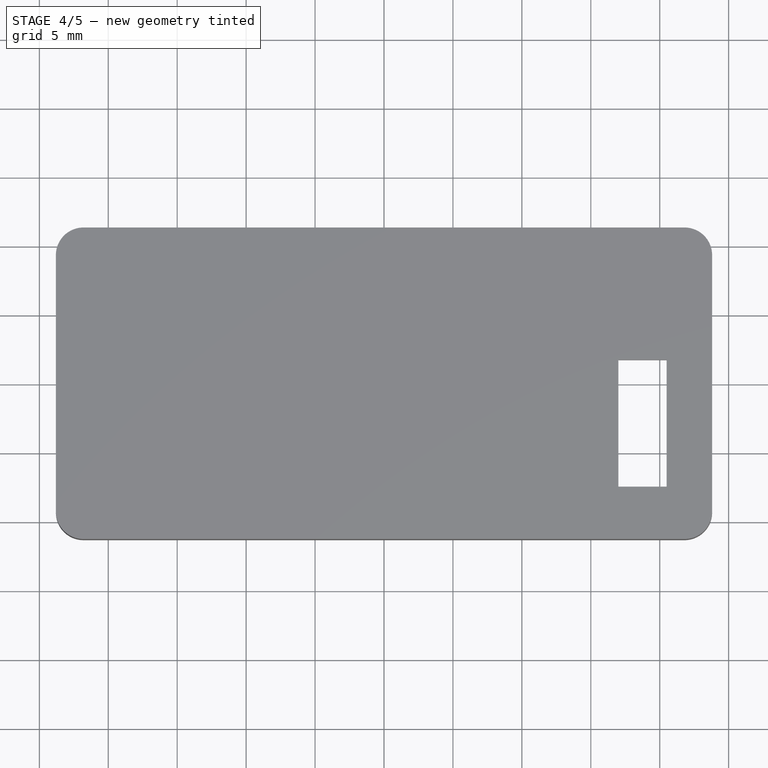
[diagram: stage 4 of 5 — top view after this stage's code; geometry added in this stage tinted green]
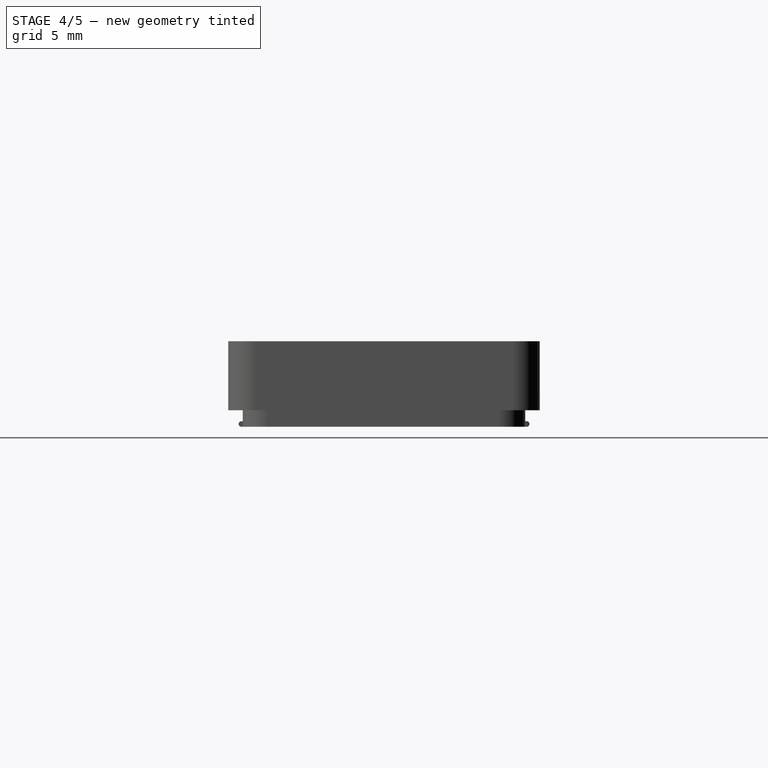
[diagram: stage 4 of 5 — right view after this stage's code; geometry added in this stage tinted green]
FEATURE [PartDesign::Fillet] Fillet
  Base = -> Pocket003 [Edge174,Edge161,Edge165,Edge158]
  BaseFeature = -> Pocket003
  Radius = 0.199
  Refine = true
  SupportTransform = false
  Suppressed = false
  UseAllEdges = false
FEATURE [Sketcher::SketchObject] Sketch009
  ArcFitTolerance = 1e-06
  AttachmentSupport = -> [Fillet]
  ExternalGeometry = -> [Fillet]
  FullyConstrained = true
  MakeInternals = false
  MapMode = 5
  Placement = pos=(0,10.25,0) rot=(0,0.707107,0.707107;3.14159rad)
  sketch-geometry (8):
    g0: LineSegment StartX=13.8 StartY=-3.8 StartZ=0 EndX=13.8 EndY=-4.2 EndZ=0
    g1: LineSegment StartX=13.8 StartY=-4.2 StartZ=0 EndX=16.8 EndY=-4.2 EndZ=0
    g2: LineSegment StartX=16.8 StartY=-4.2 StartZ=0 EndX=16.8 EndY=-3.8 EndZ=0
    g3: LineSegment StartX=16.8 StartY=-3.8 StartZ=0 EndX=13.8 EndY=-3.8 EndZ=0
    g4: LineSegment StartX=-8 StartY=-3.8 StartZ=0 EndX=-8 EndY=-4.2 EndZ=0
    g5: LineSegment StartX=-8 StartY=-4.2 StartZ=0 EndX=-5 EndY=-4.2 EndZ=0
    g6: LineSegment StartX=-5 StartY=-4.2 StartZ=0 EndX=-5 EndY=-3.8 EndZ=0
    g7: LineSegment StartX=-5 StartY=-3.8 StartZ=0 EndX=-8 EndY=-3.8 EndZ=0
  constraints (24):
    c: Coincident(g0,g1)
    c: Coincident(g1,g2)
    c: Coincident(g2,g3)
    c: Coincident(g3,g0)
    c: Vertical(g0)
    c: Vertical(g2)
    c: Horizontal(g1)
    c: Horizontal(g3)
    c: Distance(g0,g2) = 3
    c: Distance(g1,g3) = 0.4
    c: Distance(g3,g-3) = 0.4
    c: Distance(g2,g-4) = 5
    c: Coincident(g4,g5)
    c: Coincident(g5,g6)
    c: Coincident(g6,g7)
    c: Coincident(g7,g4)
    c: Vertical(g4)
    c: Vertical(g6)
    c: Horizontal(g5)
    c: Horizontal(g7)
    c: Distance(g4,g6) = 3
    c: Distance(g5,g7) = 0.4
    c: PointOnObject(g5,g-3)
    c: Distance(g4,g-5) = 3
FEATURE [PartDesign::Pad] Pad004
  BaseFeature = -> Fillet
  Direction = (0,1,-2e-16)
  Length = 0.3
  Length2 = 10
  Profile = -> Sketch009
  ReferenceAxis = -> Sketch009 [N_Axis]
  Refine = true
  Suppressed = false
  Type = 0
FEATURE [PartDesign::Fillet] Fillet001
  Base = -> Pad004 [Edge209,Edge220,Edge216,Edge219]
  BaseFeature = -> Pad004
  Radius = 0.19
  Refine = true
  SupportTransform = false
  Suppressed = false
  UseAllEdges = false
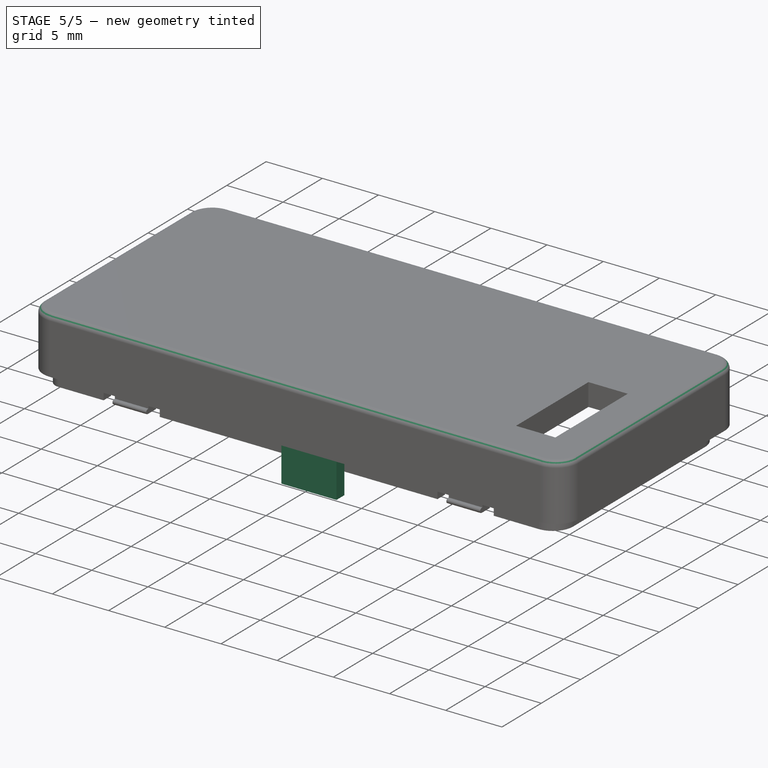
[diagram: stage 5 of 5 — iso view after this stage's code; geometry added in this stage tinted green]
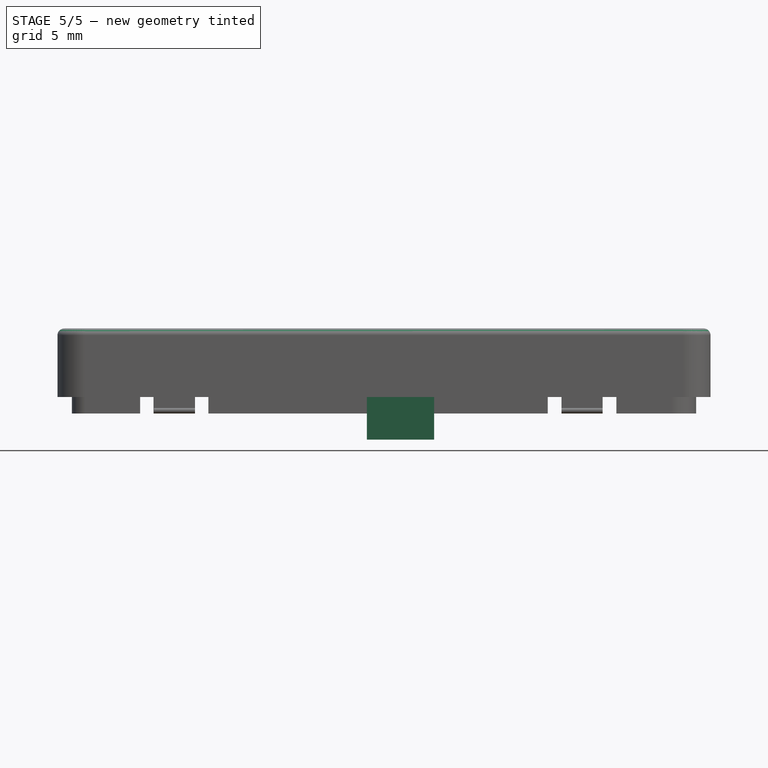
[diagram: stage 5 of 5 — front view after this stage's code; geometry added in this stage tinted green]
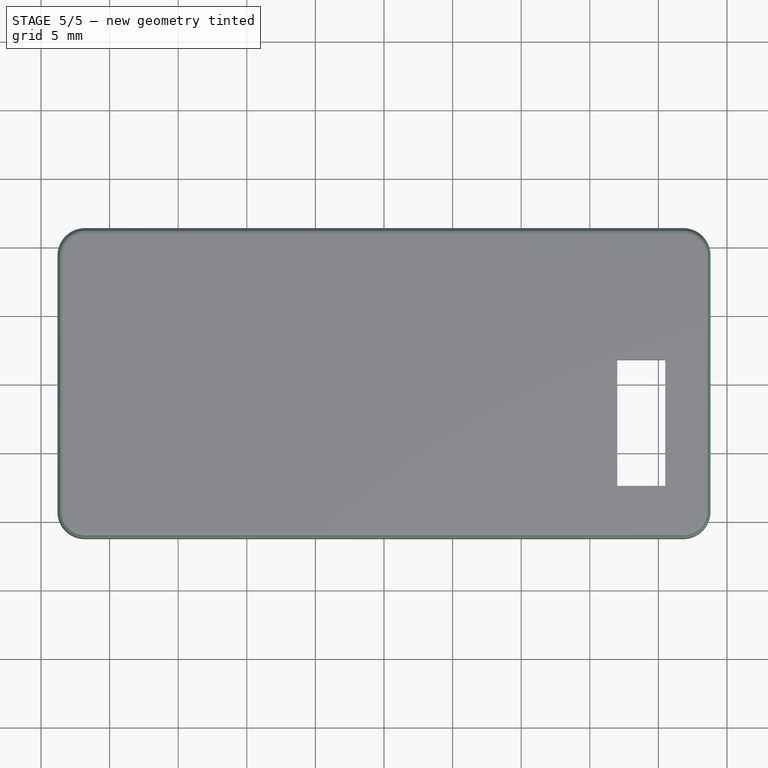
[diagram: stage 5 of 5 — top view after this stage's code; geometry added in this stage tinted green]
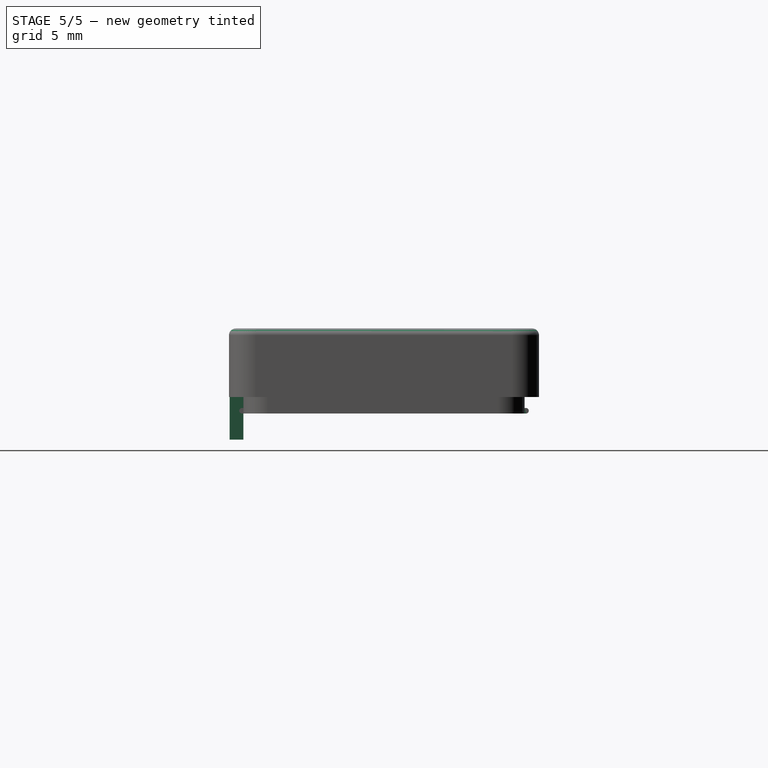
[diagram: stage 5 of 5 — right view after this stage's code; geometry added in this stage tinted green]
FEATURE [Sketcher::SketchObject] Sketch010
  ArcFitTolerance = 1e-06
  AttachmentSupport = -> [Fillet001]
  ExternalGeometry = -> [Fillet001]
  FullyConstrained = true
  MakeInternals = false
  MapMode = 5
  Placement = pos=(0,10.25,0) rot=(0,0.707107,0.707107;3.14159rad)
  sketch-geometry (16):
    g0: LineSegment StartX=-9 StartY=-3 StartZ=0 EndX=-9 EndY=-4.2 EndZ=0
    g1: LineSegment StartX=-9 StartY=-4.2 StartZ=0 EndX=-8 EndY=-4.2 EndZ=0
    g2: LineSegment StartX=-8 StartY=-4.2 StartZ=0 EndX=-8 EndY=-3 EndZ=0
    g3: LineSegment StartX=-8 StartY=-3 StartZ=0 EndX=-9 EndY=-3 EndZ=0
    g4: LineSegment StartX=-5 StartY=-3 StartZ=0 EndX=-5 EndY=-4.2 EndZ=0
    g5: LineSegment StartX=-5 StartY=-4.2 StartZ=0 EndX=-4 EndY=-4.2 EndZ=0
    g6: LineSegment StartX=-4 StartY=-4.2 StartZ=0 EndX=-4 EndY=-3 EndZ=0
    g7: LineSegment StartX=-4 StartY=-3 StartZ=0 EndX=-5 EndY=-3 EndZ=0
    g8: LineSegment StartX=12.8 StartY=-3 StartZ=0 EndX=12.8 EndY=-4.2 EndZ=0
    g9: LineSegment StartX=12.8 StartY=-4.2 StartZ=0 EndX=13.8 EndY=-4.2 EndZ=0
    g10: LineSegment StartX=13.8 StartY=-4.2 StartZ=0 EndX=13.8 EndY=-3 EndZ=0
    g11: LineSegment StartX=13.8 StartY=-3 StartZ=0 EndX=12.8 EndY=-3 EndZ=0
    g12: LineSegment StartX=16.8 StartY=-3 StartZ=0 EndX=16.8 EndY=-4.2 EndZ=0
    g13: LineSegment StartX=16.8 StartY=-4.2 StartZ=0 EndX=17.8 EndY=-4.2 EndZ=0
    g14: LineSegment StartX=17.8 StartY=-4.2 StartZ=0 EndX=17.8 EndY=-3 EndZ=0
    g15: LineSegment StartX=17.8 StartY=-3 StartZ=0 EndX=16.8 EndY=-3 EndZ=0
  constraints (48):
    c: Coincident(g0,g1)
    c: Coincident(g1,g2)
    c: Coincident(g2,g3)
    c: Coincident(g3,g0)
    c: Vertical(g0)
    c: Vertical(g2)
    c: Horizontal(g1)
    c: Horizontal(g3)
    c: Distance(g0,g2) = 1
    c: Distance(g1,g3) = 1.2
    c: Distance(g-3,g3) = 1.2
    c: Distance(g0,g-4) = 2
    c: Coincident(g4,g5)
    c: Coincident(g5,g6)
    c: Coincident(g6,g7)
    c: Coincident(g7,g4)
    c: Vertical(g4)
    c: Vertical(g6)
    c: Horizontal(g5)
    c: Horizontal(g7)
    c: Distance(g4,g6) = 1
    c: Distance(g5,g7) = 1.2
    c: Distance(g-5,g7) = 1.2
    c: Distance(g4,g-4) = 6
    c: Coincident(g8,g9)
    c: Coincident(g9,g10)
    c: Coincident(g10,g11)
    c: Coincident(g11,g8)
    c: Vertical(g8)
    c: Vertical(g10)
    c: Horizontal(g9)
    c: Horizontal(g11)
    c: Distance(g8,g10) = 1
    c: Distance(g9,g11) = 1.2
    c: Distance(g11,g-5) = 1.2
    c: Distance(g8,g-7) = 11
    c: Coincident(g12,g13)
    c: Coincident(g13,g14)
    c: Coincident(g14,g15)
    c: Coincident(g15,g12)
    c: Vertical(g12)
    c: Vertical(g14)
    c: Horizontal(g13)
    c: Horizontal(g15)
    c: Distance(g12,g14) = 1
    c: Distance(g13,g15) = 1.2
    c: Distance(g9,g15) = 1.2
    c: Distance(g-7,g12) = 7
FEATURE [PartDesign::Pocket] Pocket004
  BaseFeature = -> Fillet001
  Direction = (0,-1,2e-16)
  Length = 1
  Length2 = 5
  Profile = -> Sketch010
  ReferenceAxis = -> Sketch010 [N_Axis]
  Refine = true
  Suppressed = false
  Type = 0
FEATURE [PartDesign::Fillet] Fillet002
  Base = -> Pocket004 [Edge203,Edge204,Edge121,Edge115,Edge109,Edge199,Edge201,Edge202]
  BaseFeature = -> Pocket004
  Radius = 0.5
  Refine = true
  SupportTransform = false
  Suppressed = false
  UseAllEdges = false
FEATURE [Sketcher::SketchObject] Sketch011
  ArcFitTolerance = 1e-06
  AttachmentSupport = -> [Fillet002]
  ExternalGeometry = -> [Fillet002]
  FullyConstrained = true
  MakeInternals = false
  MapMode = 5
  Placement = pos=(0,-7e-16,-3) rot=(1,0,0;3.14159rad)
  sketch-geometry (4):
    g0: LineSegment StartX=-1.25 StartY=11.25 StartZ=0 EndX=-1.25 EndY=10.25 EndZ=0
    g1: LineSegment StartX=-1.25 StartY=10.25 StartZ=0 EndX=3.65 EndY=10.25 EndZ=0
    g2: LineSegment StartX=3.65 StartY=10.25 StartZ=0 EndX=3.65 EndY=11.25 EndZ=0
    g3: LineSegment StartX=3.65 StartY=11.25 StartZ=0 EndX=-1.25 EndY=11.25 EndZ=0
  constraints (12):
    c: Coincident(g0,g1)
    c: Coincident(g1,g2)
    c: Coincident(g2,g3)
    c: Coincident(g3,g0)
    c: Vertical(g0)
    c: Vertical(g2)
    c: Horizontal(g1)
    c: Horizontal(g3)
    c: Distance(g0,g2) = 4.9
    c: Distance(g1,g3) = 1
    c: PointOnObject(g1,g-4)
    c: DistanceX(g-3,g0) = 20.55
FEATURE [PartDesign::Pad] Pad005
  BaseFeature = -> Fillet002
  Direction = (0,0,-1)
  Length = 3.1
  Length2 = 10
  Profile = -> Sketch011
  ReferenceAxis = -> Sketch011 [N_Axis]
  Refine = true
  Suppressed = false
  Type = 0
FEATURE [PartDesign::Body] Body
  AllowCompound = false
  Group = -> [Sketch,Pad,Sketch002,Pad001,Sketch003,Pad002,Sketch004,Pocket,Sketch005,Pocket001,Sketch006,Pocket002,Chamfer,Sketch007,Pad003,Sketch008,Pocket003,Fillet,Sketch009,Pad004,Fillet001,Sketch010,Pocket004,Fillet002,Sketch011,Pad005]
  Origin = -> Origin
  Tip = -> Pad005
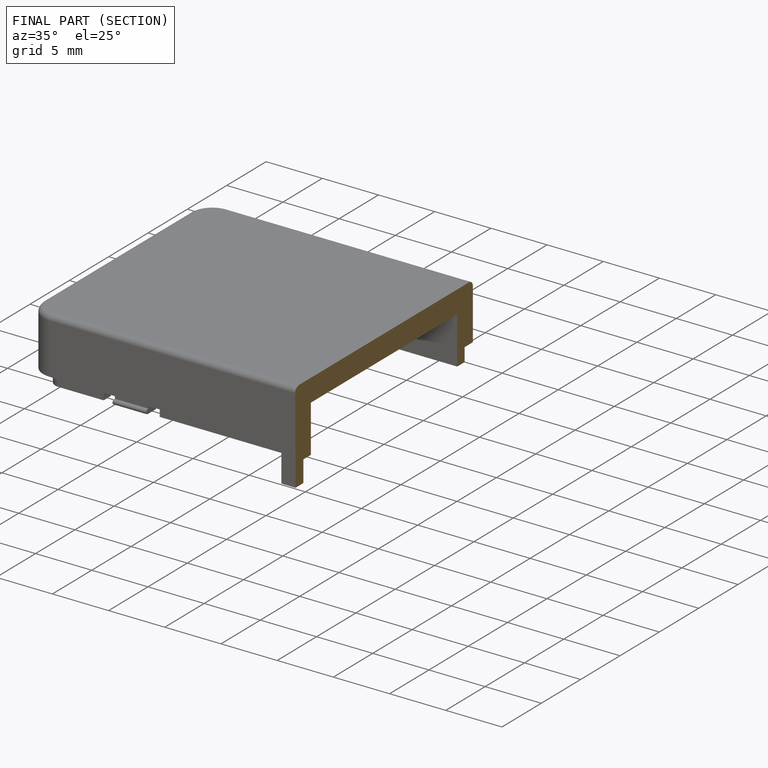
[diagram: finished part — half-section view (interior)]
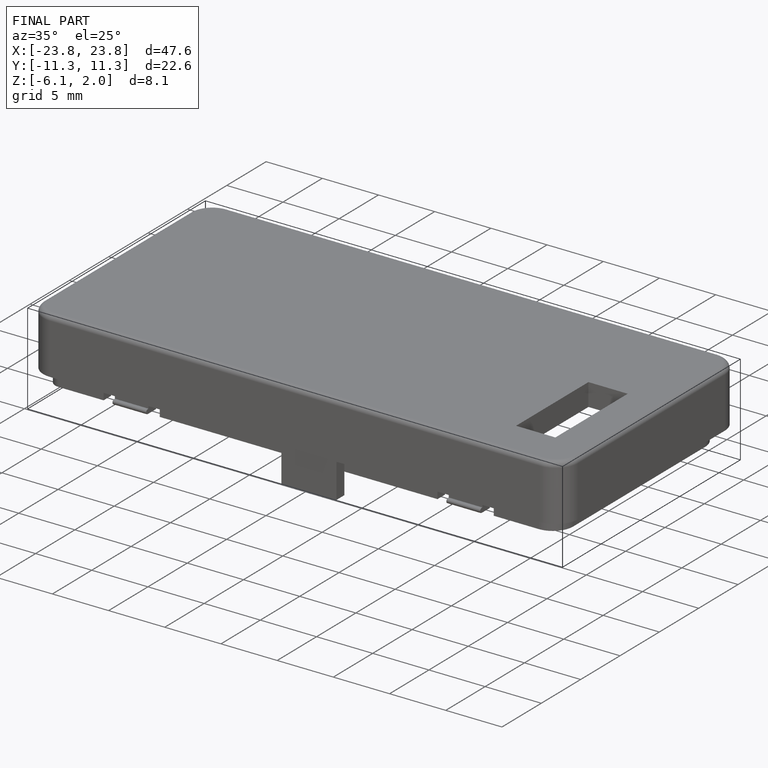
[diagram: finished part — iso view with bounding-box wireframe]
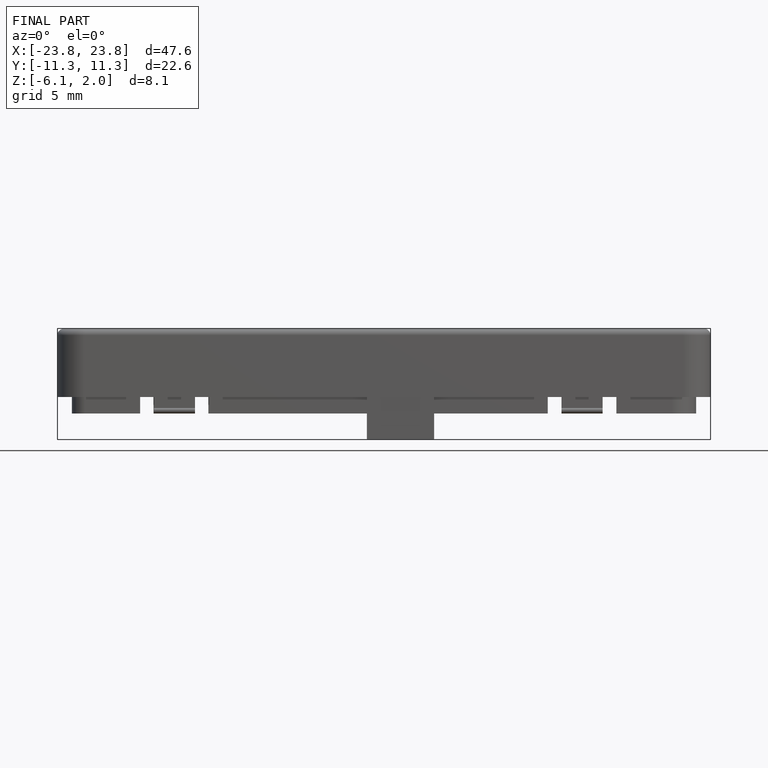
[diagram: finished part — front view with bounding-box wireframe]
